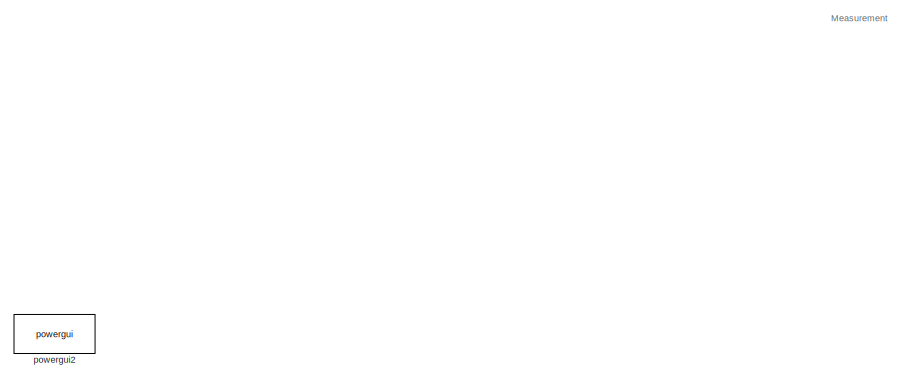
[diagram: root canvas - part 1/4, top center region]
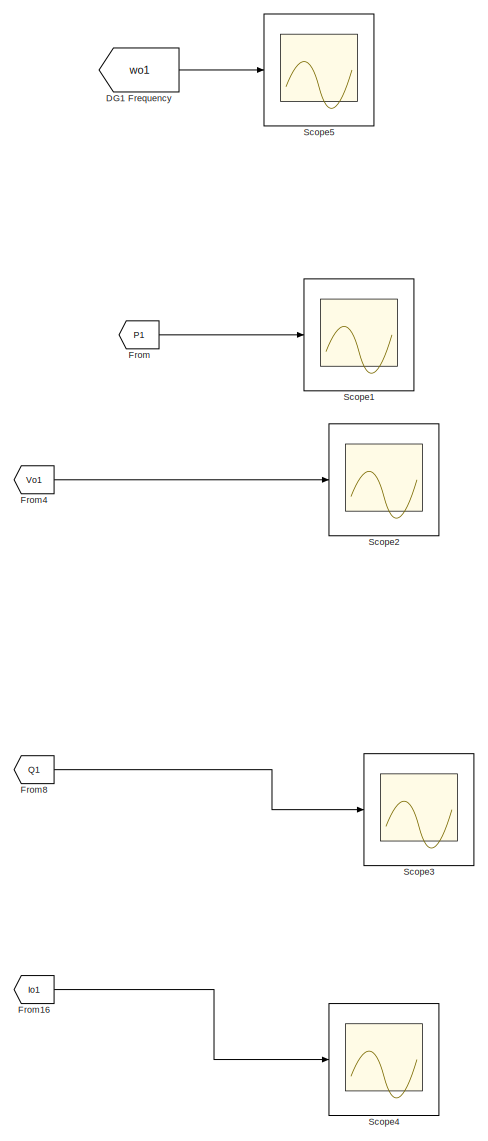
[diagram: root canvas - part 2/4, right side, full height]
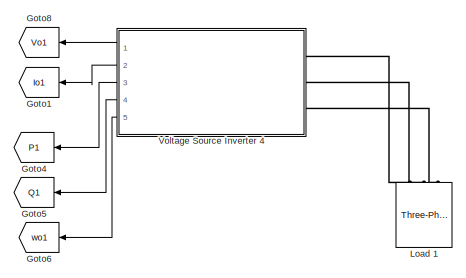
[diagram: root canvas - part 3/4, middle left region]
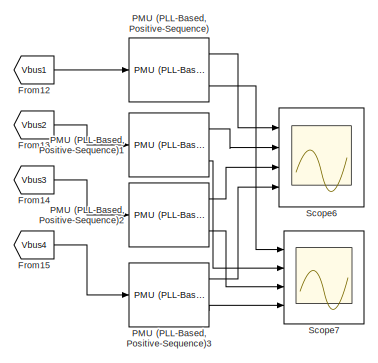
[diagram: root canvas - part 4/4, middle right region]
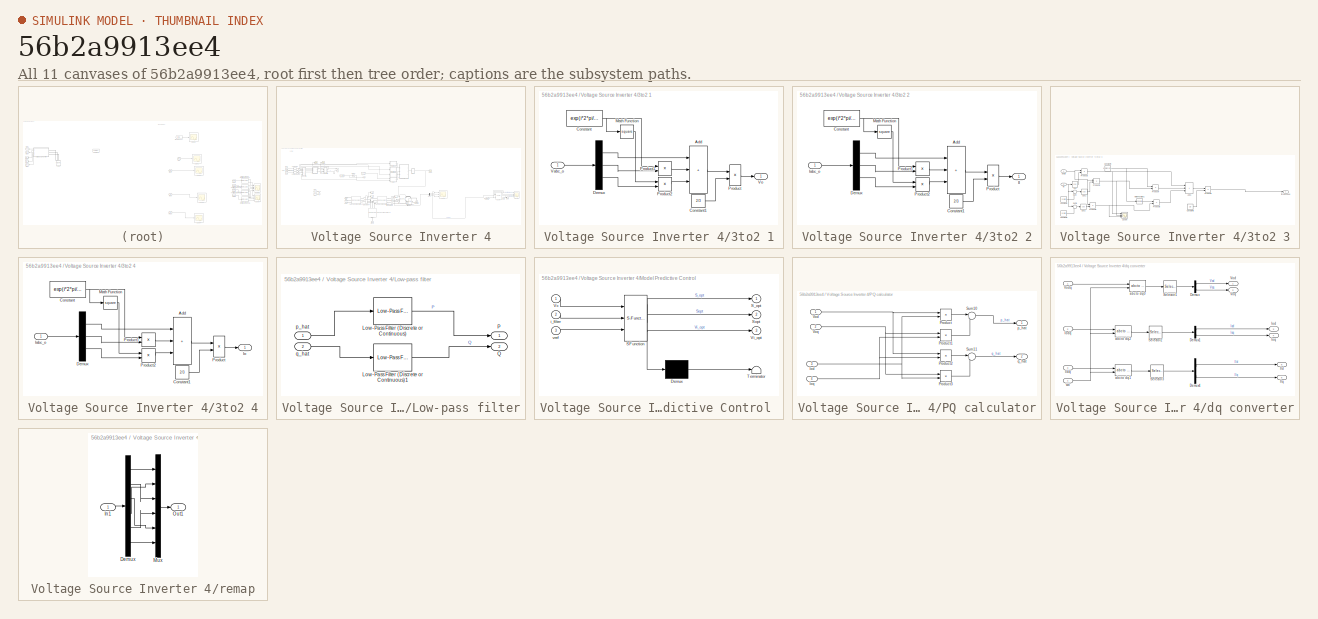
[diagram: thumbnail index - all 11 canvases of the model, root first then tree order]
MODEL slx_56b2a9913ee4
KIND model
CONFIG AbsTol = auto
CONFIG EnableMultiTasking = off
CONFIG FixedStep = auto
CONFIG MaxStep = auto
CONFIG MinStep = auto
CONFIG RelTol = 1e-3
CONFIG SampleTimeConstraint = Unconstrained
CONFIG SolverName = ode23tb
CONFIG StartTime = 0.0
CONFIG StopTime = 10
WORKSPACE source: mxarray member
WORKSPACE Ts: Simulink.Parameter (value not decoded)
WORKSPACE secondary_on: Simulink.Parameter (value not decoded)
BLOCK [From] DG1 Frequency
  GotoTag = wo1
BLOCK [From] From
  GotoTag = P1
BLOCK [From] From12
  Commented = on
  GotoTag = Vbus1
  TagVisibility = global
BLOCK [From] From13
  Commented = on
  GotoTag = Vbus2
  TagVisibility = global
BLOCK [From] From14
  Commented = on
  GotoTag = Vbus3
  TagVisibility = global
BLOCK [From] From15
  Commented = on
  GotoTag = Vbus4
  TagVisibility = global
BLOCK [From] From16
  GotoTag = Io1
BLOCK [From] From4
  GotoTag = Vo1
BLOCK [From] From8
  GotoTag = Q1
BLOCK [Goto] Goto1
  GotoTag = Io1
  NameLocation = top
BLOCK [Goto] Goto4
  GotoTag = P1
  NameLocation = top
BLOCK [Goto] Goto5
  GotoTag = Q1
  NameLocation = top
BLOCK [Goto] Goto6
  GotoTag = wo1
  NameLocation = top
BLOCK [Goto] Goto8
  GotoTag = Vo1
  NameLocation = top
BLOCK [Reference] Load 1  REF=powerlib/Elements/Three-Phase
Series RLC Load
  AttributesFormatString = \n
  NameLocation = right
  Ports = [0, 0, 0, 0, 0, 3]
  SourceBlock = powerlib/Elements/Three-Phase\nSeries RLC Load
  SourceProductBaseCode = PS
  SourceType = Three-Phase Series RLC Load
BLOCK [Reference] PMU (PLL-Based, Positive-Sequence)  REF=powerlib_meascontrol/Measurements/PMU
(PLL-Based,
Positive-Sequence)
  Commented = on
  Ports = [1, 3]
  SourceBlock = powerlib_meascontrol/Measurements/PMU\n(PLL-Based,\nPositive-Sequence)
  SourceProductBaseCode = PS
  SourceType = PMU (PLL-Based, Positive-Sequence)
BLOCK [Reference] PMU (PLL-Based, Positive-Sequence)1  REF=powerlib_meascontrol/Measurements/PMU
(PLL-Based,
Positive-Sequence)
  Commented = on
  Ports = [1, 3]
  SourceBlock = powerlib_meascontrol/Measurements/PMU\n(PLL-Based,\nPositive-Sequence)
  SourceProductBaseCode = PS
  SourceType = PMU (PLL-Based, Positive-Sequence)
BLOCK [Reference] PMU (PLL-Based, Positive-Sequence)2  REF=powerlib_meascontrol/Measurements/PMU
(PLL-Based,
Positive-Sequence)
  Commented = on
  Ports = [1, 3]
  SourceBlock = powerlib_meascontrol/Measurements/PMU\n(PLL-Based,\nPositive-Sequence)
  SourceProductBaseCode = PS
  SourceType = PMU (PLL-Based, Positive-Sequence)
BLOCK [Reference] PMU (PLL-Based, Positive-Sequence)3  REF=powerlib_meascontrol/Measurements/PMU
(PLL-Based,
Positive-Sequence)
  Commented = on
  Ports = [1, 3]
  SourceBlock = powerlib_meascontrol/Measurements/PMU\n(PLL-Based,\nPositive-Sequence)
  SourceProductBaseCode = PS
  SourceType = PMU (PLL-Based, Positive-Sequence)
BLOCK [Scope] Scope1
  Floating = off
  NumInputPorts = 1
  Ports = [1]
  ScopeSpecificationString = Simulink.scopes.TimeScopeBlockCfg('CurrentConfiguration', extmgr.ConfigurationSet(extmgr.Configuration('Core','General UI',true,'FigureColor',[1 1 1]),extmgr.Configuration('Core','Source UI',true),extmgr.Configuration('Sources','WiredSimulink',true,'DataLoggingVariableName','ScopeData2'),extmgr.Configuration('Visuals','Time Domain',true,'SerializedDisplays',{struct('MinYLimReal','19442.38178','Max...<+1959ch>
BLOCK [Scope] Scope2
  Floating = off
  NumInputPorts = 1
  Ports = [1]
  ScopeSpecificationString = Simulink.scopes.TimeScopeBlockCfg('CurrentConfiguration', extmgr.ConfigurationSet(extmgr.Configuration('Core','General UI',true,'FigureColor',[1 1 1]),extmgr.Configuration('Core','Source UI',true),extmgr.Configuration('Sources','WiredSimulink',true,'DataLoggingVariableName','Voltage','DataLogging',true),extmgr.Configuration('Visuals','Time Domain',true,'SerializedDisplays',{struct('MinYLimReal','-...<+2616ch>
BLOCK [Scope] Scope3
  Floating = off
  NumInputPorts = 1
  Ports = [1]
  ScopeSpecificationString = Simulink.scopes.TimeScopeBlockCfg('CurrentConfiguration', extmgr.ConfigurationSet(extmgr.Configuration('Core','General UI',true,'FigureColor',[1 1 1]),extmgr.Configuration('Core','Source UI',true),extmgr.Configuration('Sources','WiredSimulink',true,'DataLoggingVariableName','ScopeData3'),extmgr.Configuration('Visuals','Time Domain',true,'SerializedDisplays',{struct('MinYLimReal','-8872069661116925...<+4334ch>
BLOCK [Scope] Scope4
  Floating = off
  NumInputPorts = 1
  Ports = [1]
  ScopeSpecificationString = Simulink.scopes.TimeScopeBlockCfg('CurrentConfiguration', extmgr.ConfigurationSet(extmgr.Configuration('Core','General UI',true,'FigureColor',[1 1 1]),extmgr.Configuration('Core','Source UI',true),extmgr.Configuration('Sources','WiredSimulink',true,'DataLoggingVariableName','Current','DataLogging',true),extmgr.Configuration('Visuals','Time Domain',true,'SerializedDisplays',{struct('MinYLimReal','-...<+1969ch>
BLOCK [Scope] Scope5
  Floating = off
  NumInputPorts = 1
  Ports = [1]
  ScopeSpecificationString = Simulink.scopes.TimeScopeBlockCfg('CurrentConfiguration', extmgr.ConfigurationSet(extmgr.Configuration('Core','General UI',true,'FigureColor',[1 1 1]),extmgr.Configuration('Core','Source UI',true),extmgr.Configuration('Sources','WiredSimulink',true,'DataLoggingVariableName','ScopeData2'),extmgr.Configuration('Visuals','Time Domain',true,'SerializedDisplays',{struct('MinYLimReal','214.15927','MaxYL...<+1958ch>
BLOCK [Scope] Scope6
  Commented = on
  Floating = off
  NumInputPorts = 4
  Ports = [4]
  ScopeSpecificationString = Simulink.scopes.TimeScopeBlockCfg('CurrentConfiguration', extmgr.ConfigurationSet(extmgr.Configuration('Core','General UI',true,'FigureColor',[1 1 1]),extmgr.Configuration('Core','Source UI',true),extmgr.Configuration('Sources','WiredSimulink',true,'DataLoggingVariableName','ScopeData6'),extmgr.Configuration('Visuals','Time Domain',true,'SerializedDisplays',{struct('MinYLimReal','0.89706','MaxYLim...<+2081ch>
BLOCK [Scope] Scope7
  Commented = on
  Floating = off
  NumInputPorts = 4
  Ports = [4]
  ScopeSpecificationString = Simulink.scopes.TimeScopeBlockCfg('CurrentConfiguration', extmgr.ConfigurationSet(extmgr.Configuration('Core','General UI',true,'FigureColor',[1 1 1]),extmgr.Configuration('Core','Source UI',true),extmgr.Configuration('Sources','WiredSimulink',true,'DataLoggingVariableName','ScopeData7'),extmgr.Configuration('Visuals','Time Domain',true,'SerializedDisplays',{struct('MinYLimReal','49.48688','MaxYLi...<+1950ch>
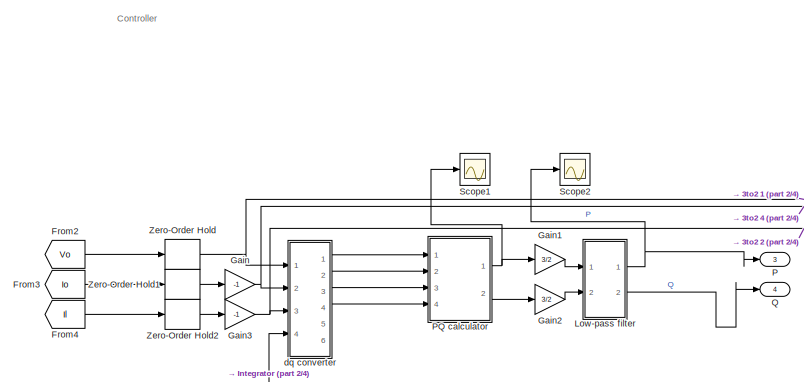
[diagram: Voltage Source Inverter 4 - part 1/4, top left region]
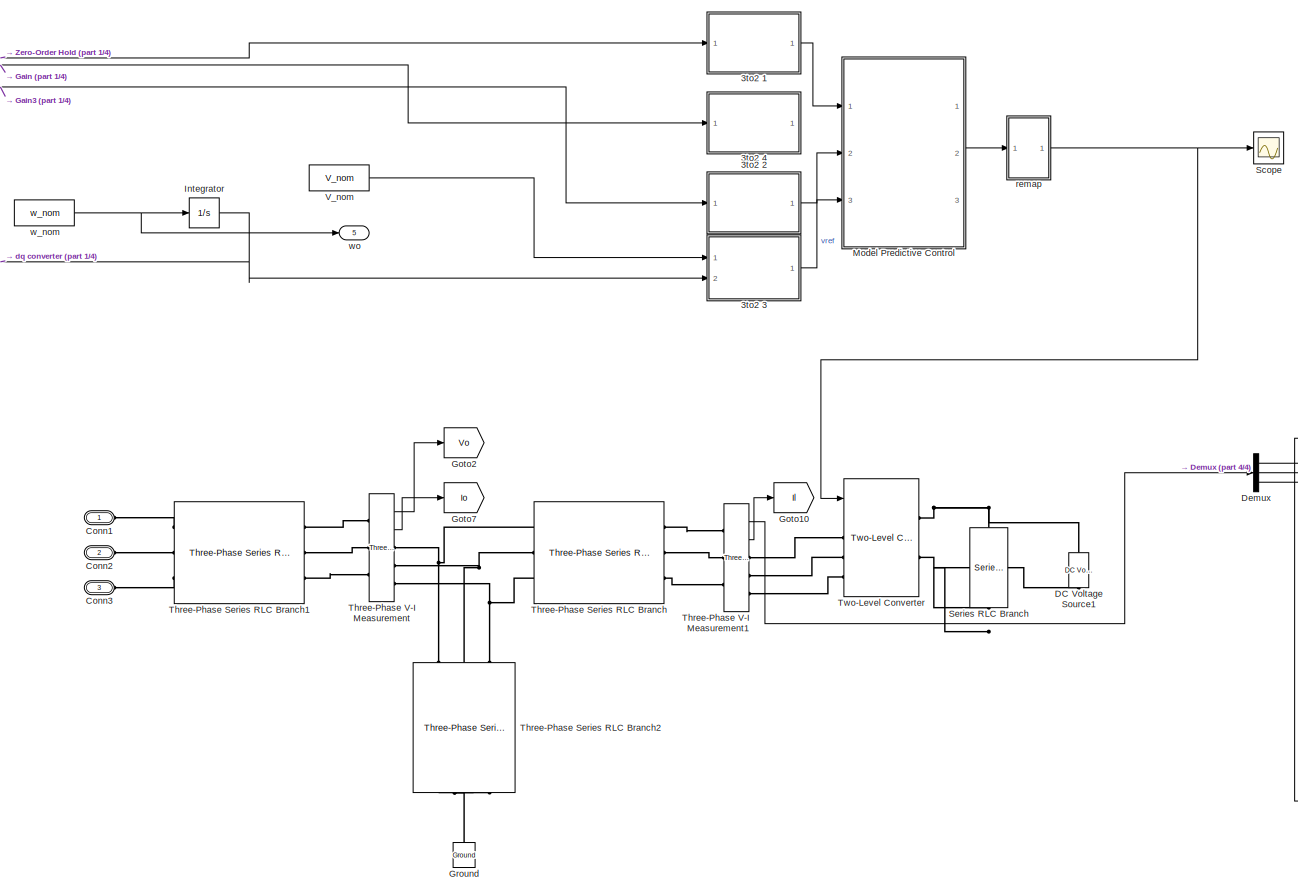
[diagram: Voltage Source Inverter 4 - part 2/4, center side, full height]
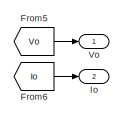
[diagram: Voltage Source Inverter 4 - part 3/4, middle left region]
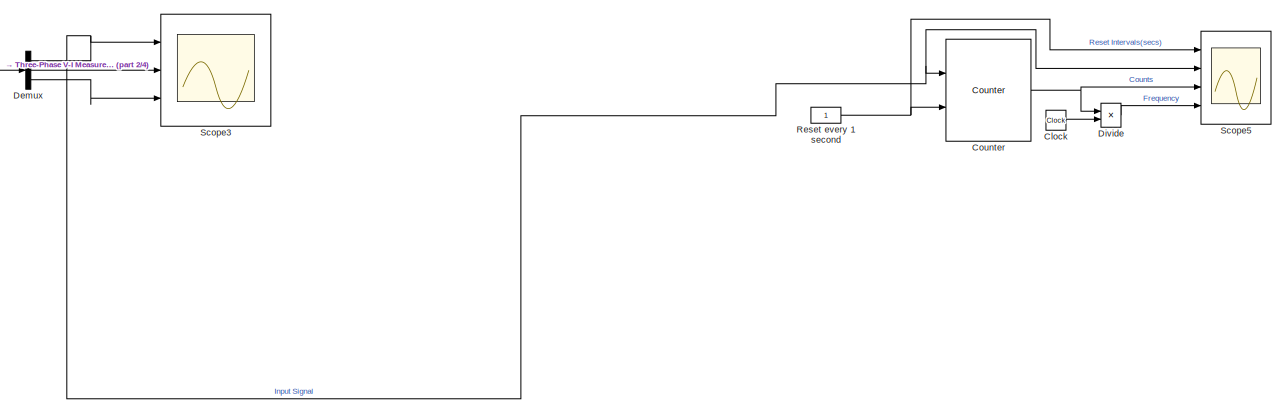
[diagram: Voltage Source Inverter 4 - part 4/4, bottom right region]
BLOCK [SubSystem] Voltage Source Inverter 4
  Ports = [0, 5, 0, 0, 0, 3]
  RequestExecContextInheritance = off
BLOCK [SubSystem] Voltage Source Inverter 4/3to2 1
  Ports = [1, 1]
  RequestExecContextInheritance = off
BLOCK [Sum] Voltage Source Inverter 4/3to2 1/Add
  IconShape = rectangular
  Inputs = +++
  Ports = [3, 1]
BLOCK [Constant] Voltage Source Inverter 4/3to2 1/Constant
  Value = exp(i*2*pi/3)
BLOCK [Constant] Voltage Source Inverter 4/3to2 1/Constant1
  Value = 2/3
BLOCK [Demux] Voltage Source Inverter 4/3to2 1/Demux
  NameLocation = top
  Outputs = 3
  Ports = [1, 3]
BLOCK [Math] Voltage Source Inverter 4/3to2 1/Math Function
  Operator = square
  Ports = [1, 1]
  SignedPower = on
BLOCK [Product] Voltage Source Inverter 4/3to2 1/Product
  Ports = [2, 1]
  RndMeth = Zero
BLOCK [Product] Voltage Source Inverter 4/3to2 1/Product1
  Ports = [2, 1]
  RndMeth = Zero
BLOCK [Product] Voltage Source Inverter 4/3to2 1/Product2
  Ports = [2, 1]
  RndMeth = Zero
BLOCK [Inport] Voltage Source Inverter 4/3to2 1/Vabc_o 
BLOCK [Outport] Voltage Source Inverter 4/3to2 1/Vo
  VectorParamsAs1DForOutWhenUnconnected = off
BLOCK [SubSystem] Voltage Source Inverter 4/3to2 2
  Ports = [1, 1]
  RequestExecContextInheritance = off
BLOCK [Sum] Voltage Source Inverter 4/3to2 2/Add
  IconShape = rectangular
  Inputs = +++
  Ports = [3, 1]
BLOCK [Constant] Voltage Source Inverter 4/3to2 2/Constant
  Value = exp(i*2*pi/3)
BLOCK [Constant] Voltage Source Inverter 4/3to2 2/Constant1
  Value = 2/3
BLOCK [Demux] Voltage Source Inverter 4/3to2 2/Demux
  NameLocation = top
  Outputs = 3
  Ports = [1, 3]
BLOCK [Inport] Voltage Source Inverter 4/3to2 2/Iabc_o 
BLOCK [Outport] Voltage Source Inverter 4/3to2 2/Il
  VectorParamsAs1DForOutWhenUnconnected = off
BLOCK [Math] Voltage Source Inverter 4/3to2 2/Math Function
  Operator = square
  Ports = [1, 1]
  SignedPower = on
BLOCK [Product] Voltage Source Inverter 4/3to2 2/Product
  Ports = [2, 1]
  RndMeth = Zero
BLOCK [Product] Voltage Source Inverter 4/3to2 2/Product1
  Ports = [2, 1]
  RndMeth = Zero
BLOCK [Product] Voltage Source Inverter 4/3to2 2/Product2
  Ports = [2, 1]
  RndMeth = Zero
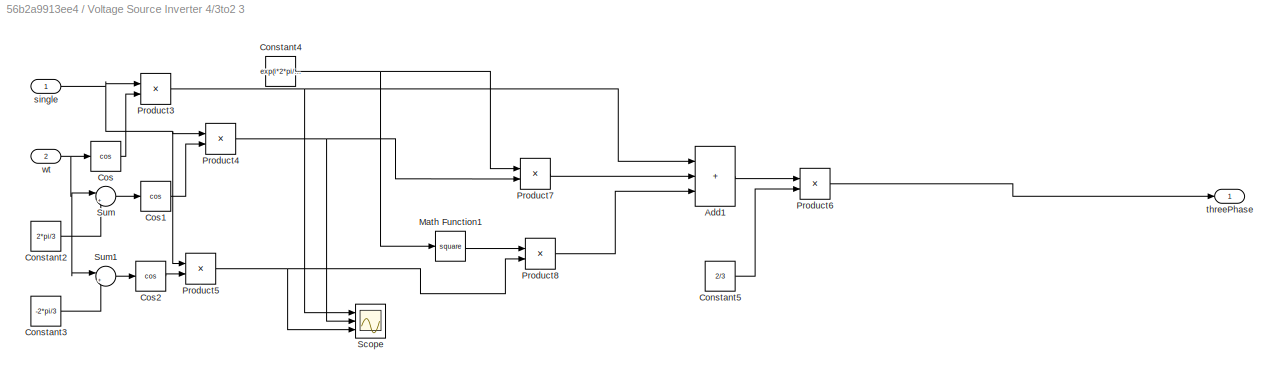
BLOCK [SubSystem] Voltage Source Inverter 4/3to2 3
  Ports = [2, 1]
  RequestExecContextInheritance = off
BLOCK [Sum] Voltage Source Inverter 4/3to2 3/Add1
  IconShape = rectangular
  Inputs = +++
  Ports = [3, 1]
BLOCK [Constant] Voltage Source Inverter 4/3to2 3/Constant2
  Value = 2*pi/3
BLOCK [Constant] Voltage Source Inverter 4/3to2 3/Constant3
  Value = -2*pi/3
BLOCK [Constant] Voltage Source Inverter 4/3to2 3/Constant4
  Value = exp(i*2*pi/3)
BLOCK [Constant] Voltage Source Inverter 4/3to2 3/Constant5
  Value = 2/3
BLOCK [Trigonometry] Voltage Source Inverter 4/3to2 3/Cos
  Operator = cos
  Ports = [1, 1]
BLOCK [Trigonometry] Voltage Source Inverter 4/3to2 3/Cos1
  Operator = cos
  Ports = [1, 1]
BLOCK [Trigonometry] Voltage Source Inverter 4/3to2 3/Cos2
  Operator = cos
  Ports = [1, 1]
BLOCK [Math] Voltage Source Inverter 4/3to2 3/Math Function1
  Operator = square
  Ports = [1, 1]
  SignedPower = on
BLOCK [Product] Voltage Source Inverter 4/3to2 3/Product3
  Ports = [2, 1]
  RndMeth = Zero
BLOCK [Product] Voltage Source Inverter 4/3to2 3/Product4
  Ports = [2, 1]
  RndMeth = Zero
BLOCK [Product] Voltage Source Inverter 4/3to2 3/Product5
  Ports = [2, 1]
  RndMeth = Zero
BLOCK [Product] Voltage Source Inverter 4/3to2 3/Product6
  Ports = [2, 1]
  RndMeth = Zero
BLOCK [Product] Voltage Source Inverter 4/3to2 3/Product7
  Ports = [2, 1]
  RndMeth = Zero
BLOCK [Product] Voltage Source Inverter 4/3to2 3/Product8
  Ports = [2, 1]
  RndMeth = Zero
BLOCK [Scope] Voltage Source Inverter 4/3to2 3/Scope
  Floating = off
  NumInputPorts = 3
  Ports = [3]
  ScopeSpecificationString = Simulink.scopes.TimeScopeBlockCfg('CurrentConfiguration', extmgr.ConfigurationSet(extmgr.Configuration('Core','General UI',true),extmgr.Configuration('Core','Source UI',true),extmgr.Configuration('Sources','WiredSimulink',true,'DataLoggingVariableName','ScopeData4'),extmgr.Configuration('Visuals','Time Domain',true,'SerializedDisplays',{struct('MinYLimReal','-388.90873','MaxYLimReal','388.90873','...<+2068ch>
BLOCK [Sum] Voltage Source Inverter 4/3to2 3/Sum
  Inputs = |++
  Ports = [2, 1]
BLOCK [Sum] Voltage Source Inverter 4/3to2 3/Sum1
  Inputs = |++
  Ports = [2, 1]
BLOCK [Inport] Voltage Source Inverter 4/3to2 3/single 
BLOCK [Outport] Voltage Source Inverter 4/3to2 3/threePhase
  VectorParamsAs1DForOutWhenUnconnected = off
BLOCK [Inport] Voltage Source Inverter 4/3to2 3/wt 
  Port = 2
BLOCK [SubSystem] Voltage Source Inverter 4/3to2 4
  Ports = [1, 1]
  RequestExecContextInheritance = off
BLOCK [Sum] Voltage Source Inverter 4/3to2 4/Add
  IconShape = rectangular
  Inputs = +++
  Ports = [3, 1]
BLOCK [Constant] Voltage Source Inverter 4/3to2 4/Constant
  Value = exp(i*2*pi/3)
BLOCK [Constant] Voltage Source Inverter 4/3to2 4/Constant1
  Value = 2/3
BLOCK [Demux] Voltage Source Inverter 4/3to2 4/Demux
  NameLocation = top
  Outputs = 3
  Ports = [1, 3]
BLOCK [Inport] Voltage Source Inverter 4/3to2 4/Iabc_o 
BLOCK [Outport] Voltage Source Inverter 4/3to2 4/Io
  VectorParamsAs1DForOutWhenUnconnected = off
BLOCK [Math] Voltage Source Inverter 4/3to2 4/Math Function
  Operator = square
  Ports = [1, 1]
  SignedPower = on
BLOCK [Product] Voltage Source Inverter 4/3to2 4/Product
  Ports = [2, 1]
  RndMeth = Zero
BLOCK [Product] Voltage Source Inverter 4/3to2 4/Product1
  Ports = [2, 1]
  RndMeth = Zero
BLOCK [Product] Voltage Source Inverter 4/3to2 4/Product2
  Ports = [2, 1]
  RndMeth = Zero
BLOCK [Clock] Voltage Source Inverter 4/Clock
  Decimation = 1
BLOCK [PMIOPort] Voltage Source Inverter 4/Conn1
  Side = Left
BLOCK [PMIOPort] Voltage Source Inverter 4/Conn2
  Port = 2
  Side = Left
BLOCK [PMIOPort] Voltage Source Inverter 4/Conn3
  Port = 3
  Side = Left
BLOCK [Reference] Voltage Source Inverter 4/Counter  REF=dspswit3/Counter
  Ports = [2, 1]
  SourceBlock = dspswit3/Counter
  SourceProductBaseCode = DS
  SourceType = Counter
BLOCK [Reference] Voltage Source Inverter 4/DC Voltage Source1  REF=powerlib/Electrical
Sources/DC Voltage Source
  NameLocation = right
  Ports = [0, 0, 0, 0, 0, 1, 1]
  SourceBlock = powerlib/Electrical\nSources/DC Voltage Source
  SourceProductBaseCode = PS
  SourceType = DC Voltage Source
BLOCK [Demux] Voltage Source Inverter 4/Demux
  Outputs = 3
  Ports = [1, 3]
BLOCK [Product] Voltage Source Inverter 4/Divide
  Inputs = */
  Ports = [2, 1]
BLOCK [From] Voltage Source Inverter 4/From2
  GotoTag = Vo
BLOCK [From] Voltage Source Inverter 4/From3
  GotoTag = Io
BLOCK [From] Voltage Source Inverter 4/From4
  GotoTag = Il
BLOCK [From] Voltage Source Inverter 4/From5
  GotoTag = Vo
BLOCK [From] Voltage Source Inverter 4/From6
  GotoTag = Io
BLOCK [Gain] Voltage Source Inverter 4/Gain
  Gain = -1
BLOCK [Gain] Voltage Source Inverter 4/Gain1
  Gain = 3/2
BLOCK [Gain] Voltage Source Inverter 4/Gain2
  Gain = 3/2
BLOCK [Gain] Voltage Source Inverter 4/Gain3
  Gain = -1
BLOCK [Goto] Voltage Source Inverter 4/Goto10
  GotoTag = Il
BLOCK [Goto] Voltage Source Inverter 4/Goto2
  GotoTag = Vo
BLOCK [Goto] Voltage Source Inverter 4/Goto7
  GotoTag = Io
BLOCK [Reference] Voltage Source Inverter 4/Ground  REF=powerlib/Elements/Ground
  NameLocation = right
  Ports = [0, 0, 0, 0, 0, 1]
  SourceBlock = powerlib/Elements/Ground
  SourceProductBaseCode = PS
  SourceType = Ground
BLOCK [Integrator] Voltage Source Inverter 4/Integrator
  Ports = [1, 1]
  WrapState = on
  WrappedStateLowerValue = 0
  WrappedStateUpperValue = 2*pi
BLOCK [Outport] Voltage Source Inverter 4/Io
  Port = 2
BLOCK [SubSystem] Voltage Source Inverter 4/Low-pass filter
  Ports = [2, 2]
  RequestExecContextInheritance = off
BLOCK [Reference] Voltage Source Inverter 4/Low-pass filter/Low-Pass Filter (Discrete or Continuous)  REF=eeGeneralControl/Low-Pass Filter
(Discrete or Continuous)
  Ports = [1, 1]
  SourceBlock = eeGeneralControl/Low-Pass Filter\n(Discrete or Continuous)
  SourceProductBaseCode = PS
  SourceType = Low-Pass Filter (Discrete or Continuous)
BLOCK [Reference] Voltage Source Inverter 4/Low-pass filter/Low-Pass Filter (Discrete or Continuous)1  REF=eeGeneralControl/Low-Pass Filter
(Discrete or Continuous)
  Ports = [1, 1]
  SourceBlock = eeGeneralControl/Low-Pass Filter\n(Discrete or Continuous)
  SourceProductBaseCode = PS
  SourceType = Low-Pass Filter (Discrete or Continuous)
BLOCK [Outport] Voltage Source Inverter 4/Low-pass filter/P
BLOCK [Outport] Voltage Source Inverter 4/Low-pass filter/Q
  Port = 2
BLOCK [Inport] Voltage Source Inverter 4/Low-pass filter/p_hat
BLOCK [Inport] Voltage Source Inverter 4/Low-pass filter/q_hat
  Port = 2
BLOCK [SubSystem] Voltage Source Inverter 4/Model Predictive Control 
  ErrorFcn = Stateflow.Translate.translate
  NameLocation = top
  PermitHierarchicalResolution = ExplicitOnly
  Ports = [3, 3]
  RequestExecContextInheritance = off
  SFBlockType = MATLAB Function
  TreatAsAtomicUnit = on
BLOCK [Demux] Voltage Source Inverter 4/Model Predictive Control / Demux 
  Outputs = 1
  Ports = [1, 1]
BLOCK [S-Function] Voltage Source Inverter 4/Model Predictive Control / SFunction 
  EnableBusSupport = on
  FunctionName = sf_sfun
  Parameters = Cfilter,Lfilter,Vdc,modT
  PortCounts = [3 4]
  Ports = [3, 4]
  SFcnIsStateOwnerBlock = off
  SFunctionDeploymentMode = off
  Tag = Stateflow S-Function 2
BLOCK [Terminator] Voltage Source Inverter 4/Model Predictive Control / Terminator 
BLOCK [Outport] Voltage Source Inverter 4/Model Predictive Control /S_opt
  VectorParamsAs1DForOutWhenUnconnected = off
BLOCK [Outport] Voltage Source Inverter 4/Model Predictive Control /Sopt
  Port = 2
  VectorParamsAs1DForOutWhenUnconnected = off
BLOCK [Inport] Voltage Source Inverter 4/Model Predictive Control /Vc
BLOCK [Outport] Voltage Source Inverter 4/Model Predictive Control /Vi_opt
  Port = 3
  VectorParamsAs1DForOutWhenUnconnected = off
BLOCK [Inport] Voltage Source Inverter 4/Model Predictive Control /i_filter
  Port = 2
BLOCK [Inport] Voltage Source Inverter 4/Model Predictive Control /vref
  Port = 3
BLOCK [Outport] Voltage Source Inverter 4/P
  Port = 3
BLOCK [SubSystem] Voltage Source Inverter 4/PQ calculator
  Ports = [4, 2]
  RequestExecContextInheritance = off
BLOCK [Inport] Voltage Source Inverter 4/PQ calculator/Iod
  Port = 3
BLOCK [Inport] Voltage Source Inverter 4/PQ calculator/Ioq
  Port = 4
BLOCK [Product] Voltage Source Inverter 4/PQ calculator/Product
  Ports = [2, 1]
BLOCK [Product] Voltage Source Inverter 4/PQ calculator/Product1
  Ports = [2, 1]
BLOCK [Product] Voltage Source Inverter 4/PQ calculator/Product2
  Ports = [2, 1]
BLOCK [Product] Voltage Source Inverter 4/PQ calculator/Product3
  Ports = [2, 1]
BLOCK [Sum] Voltage Source Inverter 4/PQ calculator/Sum10
  Inputs = |++
  Ports = [2, 1]
BLOCK [Sum] Voltage Source Inverter 4/PQ calculator/Sum11
  Inputs = |+-
  Ports = [2, 1]
BLOCK [Inport] Voltage Source Inverter 4/PQ calculator/Vod
BLOCK [Inport] Voltage Source Inverter 4/PQ calculator/Voq
  Port = 2
BLOCK [Outport] Voltage Source Inverter 4/PQ calculator/p_hat
BLOCK [Outport] Voltage Source Inverter 4/PQ calculator/q_hat
  Port = 2
BLOCK [Outport] Voltage Source Inverter 4/Q
  Port = 4
BLOCK [Constant] Voltage Source Inverter 4/Reset every 1 second
BLOCK [Scope] Voltage Source Inverter 4/Scope
  Floating = off
  NumInputPorts = 1
  Ports = [1]
  ScopeSpecificationString = Simulink.scopes.TimeScopeBlockCfg('CurrentConfiguration', extmgr.ConfigurationSet(extmgr.Configuration('Core','General UI',true),extmgr.Configuration('Core','Source UI',true),extmgr.Configuration('Sources','WiredSimulink',true,'DataLoggingVariableName','ScopeData1'),extmgr.Configuration('Visuals','Time Domain',true,'SerializedDisplays',{struct('MinYLimReal','-0.125','MaxYLimReal','1.125','YLabelRe...<+2044ch>
BLOCK [Scope] Voltage Source Inverter 4/Scope1
  Floating = off
  NumInputPorts = 1
  Ports = [1]
  ScopeSpecificationString = Simulink.scopes.TimeScopeBlockCfg('CurrentConfiguration', extmgr.ConfigurationSet(extmgr.Configuration('Core','General UI',true),extmgr.Configuration('Core','Source UI',true),extmgr.Configuration('Sources','WiredSimulink',true,'DataLoggingVariableName','ScopeData1'),extmgr.Configuration('Visuals','Time Domain',true,'SerializedDisplays',{struct('MinYLimReal','-26212.54117','MaxYLimReal','19346.5566...<+1483ch>
BLOCK [Scope] Voltage Source Inverter 4/Scope2
  Floating = off
  NumInputPorts = 1
  Ports = [1]
  ScopeSpecificationString = Simulink.scopes.TimeScopeBlockCfg('CurrentConfiguration', extmgr.ConfigurationSet(extmgr.Configuration('Core','General UI',true),extmgr.Configuration('Core','Source UI',true),extmgr.Configuration('Sources','WiredSimulink',true,'DataLoggingVariableName','ScopeData3'),extmgr.Configuration('Visuals','Time Domain',true,'SerializedDisplays',{struct('MinYLimReal','-11554.77092','MaxYLimReal','22904.3564...<+1468ch>
BLOCK [Scope] Voltage Source Inverter 4/Scope3
  Floating = off
  NumInputPorts = 3
  Ports = [3]
  ScopeSpecificationString = Simulink.scopes.TimeScopeBlockCfg('CurrentConfiguration', extmgr.ConfigurationSet(extmgr.Configuration('Core','General UI',true,'FigureColor',[1 1 1]),extmgr.Configuration('Core','Source UI',true),extmgr.Configuration('Sources','WiredSimulink',true,'DataLoggingVariableName','ScopeData1','DataLogging',true),extmgr.Configuration('Visuals','Time Domain',true,'SerializedDisplays',{struct('MinYLimReal'...<+4087ch>
BLOCK [Scope] Voltage Source Inverter 4/Scope5
  Floating = off
  NumInputPorts = 4
  Ports = [4]
  ScopeSpecificationString = Simulink.scopes.TimeScopeBlockCfg('CurrentConfiguration', extmgr.ConfigurationSet(extmgr.Configuration('Core','General UI',true,'FigureColor',[1 1 1]),extmgr.Configuration('Core','Source UI',true),extmgr.Configuration('Sources','WiredSimulink',true,'DataLoggingVariableName','ScopeData2'),extmgr.Configuration('Visuals','Time Domain',true,'TimeAxisLabels','All','SerializedDisplays',{struct('MinYLimR...<+4463ch>
BLOCK [Reference] Voltage Source Inverter 4/Series RLC Branch  REF=powerlib/Elements/Series RLC Branch
  NameLocation = left
  Ports = [0, 0, 0, 0, 0, 1, 1]
  SourceBlock = powerlib/Elements/Series RLC Branch
  SourceProductBaseCode = PS
  SourceType = Series RLC Branch
BLOCK [Reference] Voltage Source Inverter 4/Three-Phase Series RLC Branch  REF=powerlib/Elements/Three-Phase
Series RLC Branch
  AttributesFormatString = \n
  Ports = [0, 0, 0, 0, 0, 3, 3]
  SourceBlock = powerlib/Elements/Three-Phase\nSeries RLC Branch
  SourceProductBaseCode = PS
  SourceType = Three-Phase Series RLC Branch
BLOCK [Reference] Voltage Source Inverter 4/Three-Phase Series RLC Branch1  REF=powerlib/Elements/Three-Phase
Series RLC Branch
  AttributesFormatString = \n
  Ports = [0, 0, 0, 0, 0, 3, 3]
  SourceBlock = powerlib/Elements/Three-Phase\nSeries RLC Branch
  SourceProductBaseCode = PS
  SourceType = Three-Phase Series RLC Branch
BLOCK [Reference] Voltage Source Inverter 4/Three-Phase Series RLC Branch2  REF=powerlib/Elements/Three-Phase
Series RLC Branch
  AttributesFormatString = \n
  NameLocation = left
  Ports = [0, 0, 0, 0, 0, 3, 3]
  SourceBlock = powerlib/Elements/Three-Phase\nSeries RLC Branch
  SourceProductBaseCode = PS
  SourceType = Three-Phase Series RLC Branch
BLOCK [Reference] Voltage Source Inverter 4/Three-Phase V-I Measurement  REF=powerlib/Measurements/Three-Phase
V-I Measurement
  Ports = [0, 2, 0, 0, 0, 3, 3]
  SourceBlock = powerlib/Measurements/Three-Phase\nV-I Measurement
  SourceProductBaseCode = PS
  SourceType = Three-Phase VI Measurement
BLOCK [Reference] Voltage Source Inverter 4/Three-Phase V-I Measurement1  REF=powerlib/Measurements/Three-Phase
V-I Measurement
  Ports = [0, 2, 0, 0, 0, 3, 3]
  SourceBlock = powerlib/Measurements/Three-Phase\nV-I Measurement
  SourceProductBaseCode = PS
  SourceType = Three-Phase VI Measurement
BLOCK [Reference] Voltage Source Inverter 4/Two-Level Converter  REF=powerlib/Power
Electronics/Two-Level Converter
  Ports = [2, 0, 0, 0, 0, 3, 2]
  SourceBlock = powerlib/Power\nElectronics/Two-Level Converter
  SourceProductBaseCode = PS
  SourceType = Two-Level Converter
BLOCK [Constant] Voltage Source Inverter 4/V_nom
  Value = V_nom
BLOCK [Outport] Voltage Source Inverter 4/Vo
BLOCK [ZeroOrderHold] Voltage Source Inverter 4/Zero-Order Hold
  SampleTime = modT
BLOCK [ZeroOrderHold] Voltage Source Inverter 4/Zero-Order Hold1
  SampleTime = modT
BLOCK [ZeroOrderHold] Voltage Source Inverter 4/Zero-Order Hold2
  SampleTime = modT
BLOCK [SubSystem] Voltage Source Inverter 4/dq converter
  Ports = [4, 6]
  RequestExecContextInheritance = off
BLOCK [Demux] Voltage Source Inverter 4/dq converter/Demux
  Outputs = 2
  Ports = [1, 2]
BLOCK [Demux] Voltage Source Inverter 4/dq converter/Demux1
  Outputs = 2
  Ports = [1, 2]
BLOCK [Demux] Voltage Source Inverter 4/dq converter/Demux4
  Outputs = 2
  Ports = [1, 2]
BLOCK [Outport] Voltage Source Inverter 4/dq converter/Ild
  Port = 5
BLOCK [Inport] Voltage Source Inverter 4/dq converter/Ildq
  Port = 3
BLOCK [Outport] Voltage Source Inverter 4/dq converter/Ilq
  Port = 6
BLOCK [Outport] Voltage Source Inverter 4/dq converter/Iod
  Port = 3
BLOCK [Inport] Voltage Source Inverter 4/dq converter/Iodq
  Port = 2
BLOCK [Outport] Voltage Source Inverter 4/dq converter/Ioq
  Port = 4
BLOCK [Selector] Voltage Source Inverter 4/dq converter/Selector1
  IndexOptions = Index vector (dialog)
  Indices = [1 2]
  InputPortWidth = 3
  OutputSizes = 1
  Ports = [1, 1]
BLOCK [Selector] Voltage Source Inverter 4/dq converter/Selector2
  IndexOptions = Index vector (dialog)
  Indices = [1 2]
  InputPortWidth = 3
  OutputSizes = 1
  Ports = [1, 1]
BLOCK [Selector] Voltage Source Inverter 4/dq converter/Selector3
  IndexOptions = Index vector (dialog)
  Indices = [1 2]
  InputPortWidth = 3
  OutputSizes = 1
  Ports = [1, 1]
BLOCK [Outport] Voltage Source Inverter 4/dq converter/Vod
BLOCK [Inport] Voltage Source Inverter 4/dq converter/Vodq
BLOCK [Outport] Voltage Source Inverter 4/dq converter/Voq
  Port = 2
BLOCK [Reference] Voltage Source Inverter 4/dq converter/abc to dq0  REF=powerlib_meascontrol/Transformations/abc to dq0
  Ports = [2, 1]
  SourceBlock = powerlib_meascontrol/Transformations/abc to dq0
  SourceProductBaseCode = PS
  SourceType = abc to dq0 Transformation
BLOCK [Reference] Voltage Source Inverter 4/dq converter/abc to dq1  REF=powerlib_meascontrol/Transformations/abc to dq0
  Ports = [2, 1]
  SourceBlock = powerlib_meascontrol/Transformations/abc to dq0
  SourceProductBaseCode = PS
  SourceType = abc to dq0 Transformation
BLOCK [Reference] Voltage Source Inverter 4/dq converter/abc to dq2  REF=powerlib_meascontrol/Transformations/abc to dq0
  Ports = [2, 1]
  SourceBlock = powerlib_meascontrol/Transformations/abc to dq0
  SourceProductBaseCode = PS
  SourceType = abc to dq0 Transformation
BLOCK [Inport] Voltage Source Inverter 4/dq converter/wo
  Port = 4
BLOCK [SubSystem] Voltage Source Inverter 4/remap
  Ports = [1, 1]
  RequestExecContextInheritance = off
BLOCK [Demux] Voltage Source Inverter 4/remap/Demux
  NameLocation = top
  Outputs = 6
  Ports = [1, 6]
BLOCK [Inport] Voltage Source Inverter 4/remap/In1
BLOCK [Mux] Voltage Source Inverter 4/remap/Mux
  DisplayOption = bar
  Inputs = 6
  Ports = [6, 1]
BLOCK [Outport] Voltage Source Inverter 4/remap/Out1
BLOCK [Constant] Voltage Source Inverter 4/w_nom
  Value = w_nom
BLOCK [Outport] Voltage Source Inverter 4/wo
  Port = 5
BLOCK [Reference] powergui2  REF=powerlib/powergui
  Ports = []
  Priority = 1
  SourceBlock = powerlib/powergui
  SourceProductBaseCode = PS
  SourceType = PSB option menu block
ANNOTATION (root): Measurement
ANNOTATION Voltage Source Inverter 4: Controller
LINE DG1 Frequency:1 -> Scope5:1
LINE From12:1 -> PMU (PLL-Based, Positive-Sequence):1
LINE From13:1 -> PMU (PLL-Based, Positive-Sequence)1:1
LINE From14:1 -> PMU (PLL-Based, Positive-Sequence)2:1
LINE From15:1 -> PMU (PLL-Based, Positive-Sequence)3:1
LINE From16:1 -> Scope4:1
LINE From4:1 -> Scope2:1
LINE From8:1 -> Scope3:1
LINE From:1 -> Scope1:1
LINE PMU (PLL-Based, Positive-Sequence)1:1 -> Scope6:2
LINE PMU (PLL-Based, Positive-Sequence)1:3 -> Scope7:2
LINE PMU (PLL-Based, Positive-Sequence)2:1 -> Scope6:3
LINE PMU (PLL-Based, Positive-Sequence)2:3 -> Scope7:3
LINE PMU (PLL-Based, Positive-Sequence)3:1 -> Scope6:4
LINE PMU (PLL-Based, Positive-Sequence)3:3 -> Scope7:4
LINE PMU (PLL-Based, Positive-Sequence):1 -> Scope6:1
LINE PMU (PLL-Based, Positive-Sequence):3 -> Scope7:1
LINE Voltage Source Inverter 4/3to2 1/Add:1 -> Voltage Source Inverter 4/3to2 1/Product:1
LINE Voltage Source Inverter 4/3to2 1/Constant1:1 -> Voltage Source Inverter 4/3to2 1/Product:2
NET Voltage Source Inverter 4/3to2 1/Constant:1 -> Voltage Source Inverter 4/3to2 1/Math Function:1, Voltage Source Inverter 4/3to2 1/Product1:1
LINE Voltage Source Inverter 4/3to2 1/Demux:1 -> Voltage Source Inverter 4/3to2 1/Add:1
LINE Voltage Source Inverter 4/3to2 1/Demux:2 -> Voltage Source Inverter 4/3to2 1/Product1:2
LINE Voltage Source Inverter 4/3to2 1/Demux:3 -> Voltage Source Inverter 4/3to2 1/Product2:2
LINE Voltage Source Inverter 4/3to2 1/Math Function:1 -> Voltage Source Inverter 4/3to2 1/Product2:1
LINE Voltage Source Inverter 4/3to2 1/Product1:1 -> Voltage Source Inverter 4/3to2 1/Add:2
LINE Voltage Source Inverter 4/3to2 1/Product2:1 -> Voltage Source Inverter 4/3to2 1/Add:3
LINE Voltage Source Inverter 4/3to2 1/Product:1 -> Voltage Source Inverter 4/3to2 1/Vo:1
LINE Voltage Source Inverter 4/3to2 1/Vabc_o :1 -> Voltage Source Inverter 4/3to2 1/Demux:1
LINE Voltage Source Inverter 4/3to2 1:1 -> Voltage Source Inverter 4/Model Predictive Control :1
LINE Voltage Source Inverter 4/3to2 2/Add:1 -> Voltage Source Inverter 4/3to2 2/Product:1
LINE Voltage Source Inverter 4/3to2 2/Constant1:1 -> Voltage Source Inverter 4/3to2 2/Product:2
NET Voltage Source Inverter 4/3to2 2/Constant:1 -> Voltage Source Inverter 4/3to2 2/Math Function:1, Voltage Source Inverter 4/3to2 2/Product1:1
LINE Voltage Source Inverter 4/3to2 2/Demux:1 -> Voltage Source Inverter 4/3to2 2/Add:1
LINE Voltage Source Inverter 4/3to2 2/Demux:2 -> Voltage Source Inverter 4/3to2 2/Product1:2
LINE Voltage Source Inverter 4/3to2 2/Demux:3 -> Voltage Source Inverter 4/3to2 2/Product2:2
LINE Voltage Source Inverter 4/3to2 2/Iabc_o :1 -> Voltage Source Inverter 4/3to2 2/Demux:1
LINE Voltage Source Inverter 4/3to2 2/Math Function:1 -> Voltage Source Inverter 4/3to2 2/Product2:1
LINE Voltage Source Inverter 4/3to2 2/Product1:1 -> Voltage Source Inverter 4/3to2 2/Add:2
LINE Voltage Source Inverter 4/3to2 2/Product2:1 -> Voltage Source Inverter 4/3to2 2/Add:3
LINE Voltage Source Inverter 4/3to2 2/Product:1 -> Voltage Source Inverter 4/3to2 2/Il:1
LINE Voltage Source Inverter 4/3to2 2:1 -> Voltage Source Inverter 4/Model Predictive Control :2
LINE Voltage Source Inverter 4/3to2 3/Add1:1 -> Voltage Source Inverter 4/3to2 3/Product6:1
LINE Voltage Source Inverter 4/3to2 3/Constant2:1 -> Voltage Source Inverter 4/3to2 3/Sum:2
LINE Voltage Source Inverter 4/3to2 3/Constant3:1 -> Voltage Source Inverter 4/3to2 3/Sum1:2
NET Voltage Source Inverter 4/3to2 3/Constant4:1 -> Voltage Source Inverter 4/3to2 3/Math Function1:1, Voltage Source Inverter 4/3to2 3/Product7:1
LINE Voltage Source Inverter 4/3to2 3/Constant5:1 -> Voltage Source Inverter 4/3to2 3/Product6:2
LINE Voltage Source Inverter 4/3to2 3/Cos1:1 -> Voltage Source Inverter 4/3to2 3/Product4:2
LINE Voltage Source Inverter 4/3to2 3/Cos2:1 -> Voltage Source Inverter 4/3to2 3/Product5:2
LINE Voltage Source Inverter 4/3to2 3/Cos:1 -> Voltage Source Inverter 4/3to2 3/Product3:2
LINE Voltage Source Inverter 4/3to2 3/Math Function1:1 -> Voltage Source Inverter 4/3to2 3/Product8:1
NET Voltage Source Inverter 4/3to2 3/Product3:1 -> Voltage Source Inverter 4/3to2 3/Add1:1, Voltage Source Inverter 4/3to2 3/Scope:1
NET Voltage Source Inverter 4/3to2 3/Product4:1 -> Voltage Source Inverter 4/3to2 3/Product7:2, Voltage Source Inverter 4/3to2 3/Scope:2
NET Voltage Source Inverter 4/3to2 3/Product5:1 -> Voltage Source Inverter 4/3to2 3/Product8:2, Voltage Source Inverter 4/3to2 3/Scope:3
LINE Voltage Source Inverter 4/3to2 3/Product6:1 -> Voltage Source Inverter 4/3to2 3/threePhase:1
LINE Voltage Source Inverter 4/3to2 3/Product7:1 -> Voltage Source Inverter 4/3to2 3/Add1:2
LINE Voltage Source Inverter 4/3to2 3/Product8:1 -> Voltage Source Inverter 4/3to2 3/Add1:3
LINE Voltage Source Inverter 4/3to2 3/Sum1:1 -> Voltage Source Inverter 4/3to2 3/Cos2:1
LINE Voltage Source Inverter 4/3to2 3/Sum:1 -> Voltage Source Inverter 4/3to2 3/Cos1:1
NET Voltage Source Inverter 4/3to2 3/single :1 -> Voltage Source Inverter 4/3to2 3/Product3:1, Voltage Source Inverter 4/3to2 3/Product4:1, Voltage Source Inverter 4/3to2 3/Product5:1
NET Voltage Source Inverter 4/3to2 3/wt :1 -> Voltage Source Inverter 4/3to2 3/Cos:1, Voltage Source Inverter 4/3to2 3/Sum1:1, Voltage Source Inverter 4/3to2 3/Sum:1
LINE Voltage Source Inverter 4/3to2 3:1 -> Voltage Source Inverter 4/Model Predictive Control :3
LINE Voltage Source Inverter 4/3to2 4/Add:1 -> Voltage Source Inverter 4/3to2 4/Product:1
LINE Voltage Source Inverter 4/3to2 4/Constant1:1 -> Voltage Source Inverter 4/3to2 4/Product:2
NET Voltage Source Inverter 4/3to2 4/Constant:1 -> Voltage Source Inverter 4/3to2 4/Math Function:1, Voltage Source Inverter 4/3to2 4/Product1:1
LINE Voltage Source Inverter 4/3to2 4/Demux:1 -> Voltage Source Inverter 4/3to2 4/Add:1
LINE Voltage Source Inverter 4/3to2 4/Demux:2 -> Voltage Source Inverter 4/3to2 4/Product1:2
LINE Voltage Source Inverter 4/3to2 4/Demux:3 -> Voltage Source Inverter 4/3to2 4/Product2:2
LINE Voltage Source Inverter 4/3to2 4/Iabc_o :1 -> Voltage Source Inverter 4/3to2 4/Demux:1
LINE Voltage Source Inverter 4/3to2 4/Math Function:1 -> Voltage Source Inverter 4/3to2 4/Product2:1
LINE Voltage Source Inverter 4/3to2 4/Product1:1 -> Voltage Source Inverter 4/3to2 4/Add:2
LINE Voltage Source Inverter 4/3to2 4/Product2:1 -> Voltage Source Inverter 4/3to2 4/Add:3
LINE Voltage Source Inverter 4/3to2 4/Product:1 -> Voltage Source Inverter 4/3to2 4/Io:1
LINE Voltage Source Inverter 4/Clock:1 -> Voltage Source Inverter 4/Divide:2
NET Voltage Source Inverter 4/Counter:1 -> Voltage Source Inverter 4/Divide:1, Voltage Source Inverter 4/Scope5:3
NET Voltage Source Inverter 4/Demux:1 -> Voltage Source Inverter 4/Counter:1, Voltage Source Inverter 4/Scope3:1, Voltage Source Inverter 4/Scope5:2
LINE Voltage Source Inverter 4/Demux:2 -> Voltage Source Inverter 4/Scope3:2
LINE Voltage Source Inverter 4/Demux:3 -> Voltage Source Inverter 4/Scope3:3
LINE Voltage Source Inverter 4/Divide:1 -> Voltage Source Inverter 4/Scope5:4
LINE Voltage Source Inverter 4/From2:1 -> Voltage Source Inverter 4/Zero-Order Hold:1
LINE Voltage Source Inverter 4/From3:1 -> Voltage Source Inverter 4/Zero-Order Hold1:1
LINE Voltage Source Inverter 4/From4:1 -> Voltage Source Inverter 4/Zero-Order Hold2:1
LINE Voltage Source Inverter 4/From5:1 -> Voltage Source Inverter 4/Vo:1
LINE Voltage Source Inverter 4/From6:1 -> Voltage Source Inverter 4/Io:1
LINE Voltage Source Inverter 4/Gain1:1 -> Voltage Source Inverter 4/Low-pass filter:1
LINE Voltage Source Inverter 4/Gain2:1 -> Voltage Source Inverter 4/Low-pass filter:2
NET Voltage Source Inverter 4/Gain3:1 -> Voltage Source Inverter 4/3to2 2:1, Voltage Source Inverter 4/dq converter:3
NET Voltage Source Inverter 4/Gain:1 -> Voltage Source Inverter 4/3to2 4:1, Voltage Source Inverter 4/dq converter:2
NET Voltage Source Inverter 4/Integrator:1 -> Voltage Source Inverter 4/3to2 3:2, Voltage Source Inverter 4/dq converter:4
LINE Voltage Source Inverter 4/Low-pass filter/Low-Pass Filter (Discrete or Continuous)1:1 -> Voltage Source Inverter 4/Low-pass filter/Q:1
LINE Voltage Source Inverter 4/Low-pass filter/Low-Pass Filter (Discrete or Continuous):1 -> Voltage Source Inverter 4/Low-pass filter/P:1
LINE Voltage Source Inverter 4/Low-pass filter/p_hat:1 -> Voltage Source Inverter 4/Low-pass filter/Low-Pass Filter (Discrete or Continuous):1
LINE Voltage Source Inverter 4/Low-pass filter/q_hat:1 -> Voltage Source Inverter 4/Low-pass filter/Low-Pass Filter (Discrete or Continuous)1:1
NET Voltage Source Inverter 4/Low-pass filter:1 -> Voltage Source Inverter 4/P:1, Voltage Source Inverter 4/Scope2:1
LINE Voltage Source Inverter 4/Low-pass filter:2 -> Voltage Source Inverter 4/Q:1
LINE Voltage Source Inverter 4/Model Predictive Control :2 -> Voltage Source Inverter 4/remap:1
NET Voltage Source Inverter 4/PQ calculator/Iod:1 -> Voltage Source Inverter 4/PQ calculator/Product3:2, Voltage Source Inverter 4/PQ calculator/Product:2
NET Voltage Source Inverter 4/PQ calculator/Ioq:1 -> Voltage Source Inverter 4/PQ calculator/Product1:2, Voltage Source Inverter 4/PQ calculator/Product2:2
LINE Voltage Source Inverter 4/PQ calculator/Product1:1 -> Voltage Source Inverter 4/PQ calculator/Sum10:2
LINE Voltage Source Inverter 4/PQ calculator/Product2:1 -> Voltage Source Inverter 4/PQ calculator/Sum11:1
LINE Voltage Source Inverter 4/PQ calculator/Product3:1 -> Voltage Source Inverter 4/PQ calculator/Sum11:2
LINE Voltage Source Inverter 4/PQ calculator/Product:1 -> Voltage Source Inverter 4/PQ calculator/Sum10:1
LINE Voltage Source Inverter 4/PQ calculator/Sum10:1 -> Voltage Source Inverter 4/PQ calculator/p_hat:1
LINE Voltage Source Inverter 4/PQ calculator/Sum11:1 -> Voltage Source Inverter 4/PQ calculator/q_hat:1
NET Voltage Source Inverter 4/PQ calculator/Vod:1 -> Voltage Source Inverter 4/PQ calculator/Product2:1, Voltage Source Inverter 4/PQ calculator/Product:1
NET Voltage Source Inverter 4/PQ calculator/Voq:1 -> Voltage Source Inverter 4/PQ calculator/Product1:1, Voltage Source Inverter 4/PQ calculator/Product3:1
NET Voltage Source Inverter 4/PQ calculator:1 -> Voltage Source Inverter 4/Gain1:1, Voltage Source Inverter 4/Scope1:1
LINE Voltage Source Inverter 4/PQ calculator:2 -> Voltage Source Inverter 4/Gain2:1
NET Voltage Source Inverter 4/Reset every 1 second:1 -> Voltage Source Inverter 4/Counter:2, Voltage Source Inverter 4/Scope5:1
LINE Voltage Source Inverter 4/Three-Phase V-I Measurement1:1 -> Voltage Source Inverter 4/Demux:1
LINE Voltage Source Inverter 4/Three-Phase V-I Measurement1:2 -> Voltage Source Inverter 4/Goto10:1
LINE Voltage Source Inverter 4/Three-Phase V-I Measurement:1 -> Voltage Source Inverter 4/Goto2:1
LINE Voltage Source Inverter 4/Three-Phase V-I Measurement:2 -> Voltage Source Inverter 4/Goto7:1
LINE Voltage Source Inverter 4/V_nom:1 -> Voltage Source Inverter 4/3to2 3:1
LINE Voltage Source Inverter 4/Zero-Order Hold1:1 -> Voltage Source Inverter 4/Gain:1
LINE Voltage Source Inverter 4/Zero-Order Hold2:1 -> Voltage Source Inverter 4/Gain3:1
NET Voltage Source Inverter 4/Zero-Order Hold:1 -> Voltage Source Inverter 4/3to2 1:1, Voltage Source Inverter 4/dq converter:1
LINE Voltage Source Inverter 4/dq converter/Demux1:1 -> Voltage Source Inverter 4/dq converter/Iod:1
LINE Voltage Source Inverter 4/dq converter/Demux1:2 -> Voltage Source Inverter 4/dq converter/Ioq:1
LINE Voltage Source Inverter 4/dq converter/Demux4:1 -> Voltage Source Inverter 4/dq converter/Ild:1
LINE Voltage Source Inverter 4/dq converter/Demux4:2 -> Voltage Source Inverter 4/dq converter/Ilq:1
LINE Voltage Source Inverter 4/dq converter/Demux:1 -> Voltage Source Inverter 4/dq converter/Vod:1
LINE Voltage Source Inverter 4/dq converter/Demux:2 -> Voltage Source Inverter 4/dq converter/Voq:1
LINE Voltage Source Inverter 4/dq converter/Ildq:1 -> Voltage Source Inverter 4/dq converter/abc to dq1:1
LINE Voltage Source Inverter 4/dq converter/Iodq:1 -> Voltage Source Inverter 4/dq converter/abc to dq2:1
LINE Voltage Source Inverter 4/dq converter/Selector1:1 -> Voltage Source Inverter 4/dq converter/Demux:1
LINE Voltage Source Inverter 4/dq converter/Selector2:1 -> Voltage Source Inverter 4/dq converter/Demux1:1
LINE Voltage Source Inverter 4/dq converter/Selector3:1 -> Voltage Source Inverter 4/dq converter/Demux4:1
LINE Voltage Source Inverter 4/dq converter/Vodq:1 -> Voltage Source Inverter 4/dq converter/abc to dq0:1
LINE Voltage Source Inverter 4/dq converter/abc to dq0:1 -> Voltage Source Inverter 4/dq converter/Selector1:1
LINE Voltage Source Inverter 4/dq converter/abc to dq1:1 -> Voltage Source Inverter 4/dq converter/Selector3:1
LINE Voltage Source Inverter 4/dq converter/abc to dq2:1 -> Voltage Source Inverter 4/dq converter/Selector2:1
NET Voltage Source Inverter 4/dq converter/wo:1 -> Voltage Source Inverter 4/dq converter/abc to dq0:2, Voltage Source Inverter 4/dq converter/abc to dq1:2, Voltage Source Inverter 4/dq converter/abc to dq2:2
LINE Voltage Source Inverter 4/dq converter:1 -> Voltage Source Inverter 4/PQ calculator:1
LINE Voltage Source Inverter 4/dq converter:2 -> Voltage Source Inverter 4/PQ calculator:2
LINE Voltage Source Inverter 4/dq converter:3 -> Voltage Source Inverter 4/PQ calculator:3
LINE Voltage Source Inverter 4/dq converter:4 -> Voltage Source Inverter 4/PQ calculator:4
LINE Voltage Source Inverter 4/remap/Demux:1 -> Voltage Source Inverter 4/remap/Mux:1
LINE Voltage Source Inverter 4/remap/Demux:2 -> Voltage Source Inverter 4/remap/Mux:3
LINE Voltage Source Inverter 4/remap/Demux:3 -> Voltage Source Inverter 4/remap/Mux:5
LINE Voltage Source Inverter 4/remap/Demux:4 -> Voltage Source Inverter 4/remap/Mux:2
LINE Voltage Source Inverter 4/remap/Demux:5 -> Voltage Source Inverter 4/remap/Mux:4
LINE Voltage Source Inverter 4/remap/Demux:6 -> Voltage Source Inverter 4/remap/Mux:6
LINE Voltage Source Inverter 4/remap/In1:1 -> Voltage Source Inverter 4/remap/Demux:1
LINE Voltage Source Inverter 4/remap/Mux:1 -> Voltage Source Inverter 4/remap/Out1:1
NET Voltage Source Inverter 4/remap:1 -> Voltage Source Inverter 4/Scope:1, Voltage Source Inverter 4/Two-Level Converter:1
NET Voltage Source Inverter 4/w_nom:1 -> Voltage Source Inverter 4/Integrator:1, Voltage Source Inverter 4/wo:1
LINE Voltage Source Inverter 4:1 -> Goto8:1
LINE Voltage Source Inverter 4:2 -> Goto1:1
LINE Voltage Source Inverter 4:3 -> Goto4:1
LINE Voltage Source Inverter 4:4 -> Goto5:1
LINE Voltage Source Inverter 4:5 -> Goto6:1
PLINE Load 1:LConn1 -- Voltage Source Inverter 4:LConn1
PLINE Load 1:LConn2 -- Voltage Source Inverter 4:LConn2
PLINE Load 1:LConn3 -- Voltage Source Inverter 4:LConn3
PLINE Voltage Source Inverter 4/Conn1:RConn1 -- Voltage Source Inverter 4/Three-Phase Series RLC Branch1:LConn1
PLINE Voltage Source Inverter 4/Conn2:RConn1 -- Voltage Source Inverter 4/Three-Phase Series RLC Branch1:LConn2
PLINE Voltage Source Inverter 4/Conn3:RConn1 -- Voltage Source Inverter 4/Three-Phase Series RLC Branch1:LConn3
PNET net1: Voltage Source Inverter 4/DC Voltage Source1:LConn1 -- Voltage Source Inverter 4/Series RLC Branch:RConn1 -- Voltage Source Inverter 4/Two-Level Converter:RConn2
PNET net2: Voltage Source Inverter 4/DC Voltage Source1:RConn1 -- Voltage Source Inverter 4/Series RLC Branch:LConn1 -- Voltage Source Inverter 4/Two-Level Converter:RConn1
PNET net3: Voltage Source Inverter 4/Ground:LConn1 -- Voltage Source Inverter 4/Three-Phase Series RLC Branch2:RConn1 -- Voltage Source Inverter 4/Three-Phase Series RLC Branch2:RConn2 -- Voltage Source Inverter 4/Three-Phase Series RLC Branch2:RConn3
PLINE Voltage Source Inverter 4/Three-Phase Series RLC Branch1:RConn1 -- Voltage Source Inverter 4/Three-Phase V-I Measurement:LConn1
PLINE Voltage Source Inverter 4/Three-Phase Series RLC Branch1:RConn2 -- Voltage Source Inverter 4/Three-Phase V-I Measurement:LConn2
PLINE Voltage Source Inverter 4/Three-Phase Series RLC Branch1:RConn3 -- Voltage Source Inverter 4/Three-Phase V-I Measurement:LConn3
PNET net4: Voltage Source Inverter 4/Three-Phase Series RLC Branch2:LConn1 -- Voltage Source Inverter 4/Three-Phase Series RLC Branch:LConn1 -- Voltage Source Inverter 4/Three-Phase V-I Measurement:RConn1
PNET net5: Voltage Source Inverter 4/Three-Phase Series RLC Branch2:LConn2 -- Voltage Source Inverter 4/Three-Phase Series RLC Branch:LConn2 -- Voltage Source Inverter 4/Three-Phase V-I Measurement:RConn2
PNET net6: Voltage Source Inverter 4/Three-Phase Series RLC Branch2:LConn3 -- Voltage Source Inverter 4/Three-Phase Series RLC Branch:LConn3 -- Voltage Source Inverter 4/Three-Phase V-I Measurement:RConn3
PLINE Voltage Source Inverter 4/Three-Phase Series RLC Branch:RConn1 -- Voltage Source Inverter 4/Three-Phase V-I Measurement1:LConn1
PLINE Voltage Source Inverter 4/Three-Phase Series RLC Branch:RConn2 -- Voltage Source Inverter 4/Three-Phase V-I Measurement1:LConn2
PLINE Voltage Source Inverter 4/Three-Phase Series RLC Branch:RConn3 -- Voltage Source Inverter 4/Three-Phase V-I Measurement1:LConn3
PLINE Voltage Source Inverter 4/Three-Phase V-I Measurement1:RConn1 -- Voltage Source Inverter 4/Two-Level Converter:LConn1
PLINE Voltage Source Inverter 4/Three-Phase V-I Measurement1:RConn2 -- Voltage Source Inverter 4/Two-Level Converter:LConn2
PLINE Voltage Source Inverter 4/Three-Phase V-I Measurement1:RConn3 -- Voltage Source Inverter 4/Two-Level Converter:LConn3
note: NET lines group one-source signal fan-out (src -> all destinations, sorted); 1:1 wires keep LINE; PNET lines group multi-terminal physical nets as a canonical sorted terminal list (undirected conserving connections); 2-terminal nets keep the pairwise PLINE form
CHART Voltage Source Inverter 4/Model Predictive Control 
 states=1 transitions=1
  STATE_LABEL 'eML_blk_kernel()'
  STATE_LABEL 'SCRIPT:\nfunction [S_opt, Sopt, Vi_opt] = MPC(Vc, i_filter,vref,Vdc,modT,Cfilter,Lfilter)\n\n    % In order to call "cont2dis" function\n    coder.extrinsic(\'cont2dis\');\n    persistent Aq Bq Bdq Vc1 if1 Vc_old if_old x_opt g \n\n    % Initialize variables and get the parameters of the Discrete model based on Ts\n    if isempty(x_opt), x_opt = 1; end\n    if isempty(Vc1), Vc1 = 0 + 1j*0; end\n    if isempty...<+1823ch>'
CHART  states=0 transitions=0
